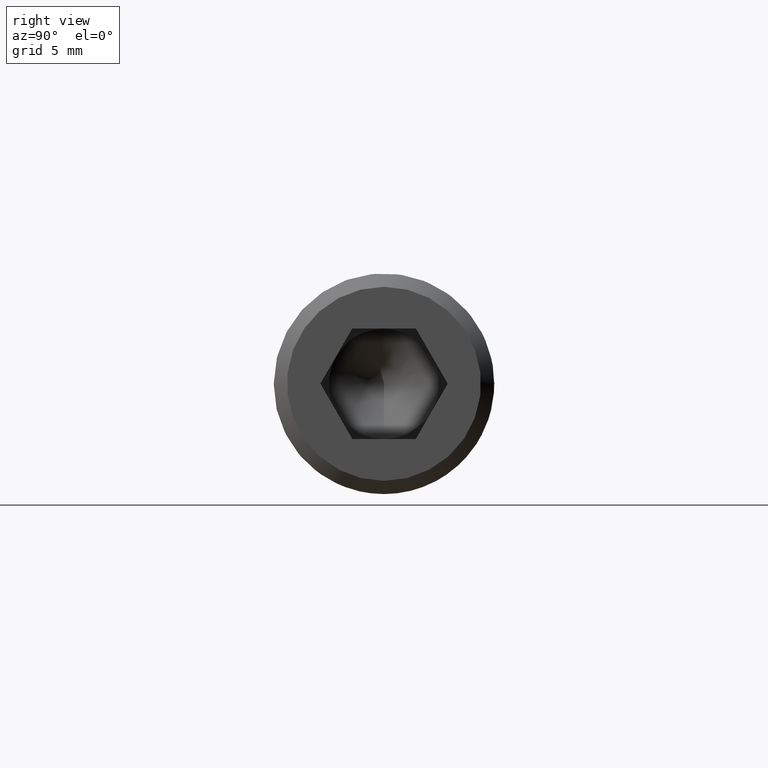
[diagram: clean part render]
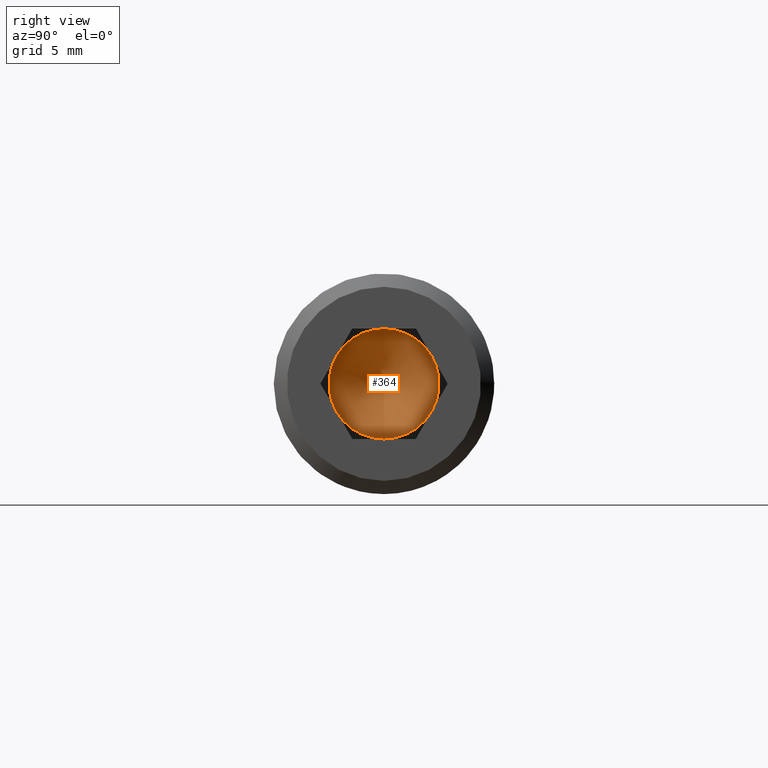
[diagram: same view with one face highlighted and labeled with its STEP entity id]
A machine part, right view. The second image highlights one B-rep face of the part: STEP entity #364.
In plain terms, the highlighted conical surface has half-angle 59 deg.
Its self-contained STEP definition (entity closure, byte-faithful):
#364 = ADVANCED_FACE ( 'NONE', ( #8355 ), #16411, .F. ) ;
#563 = EDGE_CURVE ( 'NONE', #2513, #7392, #16839, .T. ) ;
#1183 = DIRECTION ( 'NONE',  ( 0.0000000000000000000, 0.0000000000000000000, -1.000000000000000000 ) ) ;
#1186 = CIRCLE ( 'NONE', #4621, 2.500000000000002200 ) ;
#1951 = CARTESIAN_POINT ( 'NONE',  ( 24.00000000000000000, 0.0000000000000000000, 2.500000000000004400 ) ) ;
#2078 = DIRECTION ( 'NONE',  ( 0.0000000000000000000, 0.0000000000000000000, -1.000000000000000000 ) ) ;
#2513 = VERTEX_POINT ( 'NONE', #14290 ) ;
#2641 = AXIS2_PLACEMENT_3D ( 'NONE', #3935, #12199, #8104 ) ;
#2725 = AXIS2_PLACEMENT_3D ( 'NONE', #16428, #14980, #12299 ) ;
#2796 = VERTEX_POINT ( 'NONE', #14088 ) ;
#2859 = DIRECTION ( 'NONE',  ( 0.0000000000000000000, 0.0000000000000000000, -1.000000000000000000 ) ) ;
#2982 = EDGE_CURVE ( 'NONE', #7392, #11617, #15599, .T. ) ;
#3885 = EDGE_CURVE ( 'NONE', #11617, #13040, #6847, .T. ) ;
#3935 = CARTESIAN_POINT ( 'NONE',  ( 24.00000000000000000, 0.0000000000000000000, 1.438164128724989300E-015 ) ) ;
#4621 = AXIS2_PLACEMENT_3D ( 'NONE', #13664, #8089, #1183 ) ;
#4719 = EDGE_CURVE ( 'NONE', #2796, #4876, #1186, .T. ) ;
#4876 = VERTEX_POINT ( 'NONE', #1951 ) ;
#5022 = CARTESIAN_POINT ( 'NONE',  ( 24.00000000000000000, 0.0000000000000000000, 2.204364238465234600E-015 ) ) ;
#5650 = CARTESIAN_POINT ( 'NONE',  ( 24.00000000000000000, -2.165063509461101700, -1.250000000000000700 ) ) ;
#6647 = AXIS2_PLACEMENT_3D ( 'NONE', #16523, #6784, #11220 ) ;
#6784 = DIRECTION ( 'NONE',  ( 1.000000000000000000, 0.0000000000000000000, 0.0000000000000000000 ) ) ;
#6847 = CIRCLE ( 'NONE', #7182, 2.500000000000002200 ) ;
#7182 = AXIS2_PLACEMENT_3D ( 'NONE', #11061, #8372, #2859 ) ;
#7392 = VERTEX_POINT ( 'NONE', #5650 ) ;
#8089 = DIRECTION ( 'NONE',  ( 1.000000000000000000, 0.0000000000000000000, 0.0000000000000000000 ) ) ;
#8104 = DIRECTION ( 'NONE',  ( 0.0000000000000000000, 0.0000000000000000000, -1.000000000000000000 ) ) ;
#8355 = FACE_OUTER_BOUND ( 'NONE', #9565, .T. ) ;
#8372 = DIRECTION ( 'NONE',  ( 1.000000000000000000, -0.0000000000000000000, -1.841517888950051000E-016 ) ) ;
#9197 = CIRCLE ( 'NONE', #2725, 2.500000000000002200 ) ;
#9492 = ORIENTED_EDGE ( 'NONE', *, *, #4719, .T. ) ;
#9565 = EDGE_LOOP ( 'NONE', ( #13220, #14139, #9492, #10911, #17832, #16064 ) ) ;
#10911 = ORIENTED_EDGE ( 'NONE', *, *, #17647, .T. ) ;
#11061 = CARTESIAN_POINT ( 'NONE',  ( 24.00000000000000000, 0.0000000000000000000, 2.204364238465234600E-015 ) ) ;
#11220 = DIRECTION ( 'NONE',  ( 0.0000000000000000000, 0.0000000000000000000, -1.000000000000000000 ) ) ;
#11617 = VERTEX_POINT ( 'NONE', #12788 ) ;
#11692 = CARTESIAN_POINT ( 'NONE',  ( 24.00000000000000000, 0.0000000000000000000, 1.438164128724989300E-015 ) ) ;
#12199 = DIRECTION ( 'NONE',  ( 1.000000000000000000, 0.0000000000000000000, 0.0000000000000000000 ) ) ;
#12299 = DIRECTION ( 'NONE',  ( 0.0000000000000000000, 0.0000000000000000000, -1.000000000000000000 ) ) ;
#12446 = CARTESIAN_POINT ( 'NONE',  ( 24.00000000000000000, 2.165063509461098600, -1.249999999999998700 ) ) ;
#12637 = DIRECTION ( 'NONE',  ( 1.000000000000000000, -0.0000000000000000000, -1.841517888950051000E-016 ) ) ;
#12788 = CARTESIAN_POINT ( 'NONE',  ( 24.00000000000000000, -3.755786496842895100E-016, -2.500000000000000000 ) ) ;
#13040 = VERTEX_POINT ( 'NONE', #12446 ) ;
#13220 = ORIENTED_EDGE ( 'NONE', *, *, #3885, .T. ) ;
#13664 = CARTESIAN_POINT ( 'NONE',  ( 24.00000000000000000, 0.0000000000000000000, 1.438164128724989300E-015 ) ) ;
#13826 = CIRCLE ( 'NONE', #6647, 2.500000000000002200 ) ;
#14088 = CARTESIAN_POINT ( 'NONE',  ( 24.00000000000000000, 2.165063509461099000, 1.250000000000002400 ) ) ;
#14139 = ORIENTED_EDGE ( 'NONE', *, *, #16956, .T. ) ;
#14290 = CARTESIAN_POINT ( 'NONE',  ( 24.00000000000000000, -2.165063509461098600, 1.250000000000003300 ) ) ;
#14536 = AXIS2_PLACEMENT_3D ( 'NONE', #5022, #12637, #14818 ) ;
#14818 = DIRECTION ( 'NONE',  ( 0.0000000000000000000, 0.0000000000000000000, -1.000000000000000000 ) ) ;
#14980 = DIRECTION ( 'NONE',  ( 1.000000000000000000, 0.0000000000000000000, 0.0000000000000000000 ) ) ;
#15599 = CIRCLE ( 'NONE', #17454, 2.500000000000002200 ) ;
#15929 = DIRECTION ( 'NONE',  ( 1.000000000000000000, 0.0000000000000000000, 0.0000000000000000000 ) ) ;
#16064 = ORIENTED_EDGE ( 'NONE', *, *, #2982, .T. ) ;
#16411 = CONICAL_SURFACE ( 'NONE', #14536, 2.500000000000002200, 1.029744258676650100 ) ;
#16428 = CARTESIAN_POINT ( 'NONE',  ( 24.00000000000000000, 0.0000000000000000000, 1.438164128724989300E-015 ) ) ;
#16523 = CARTESIAN_POINT ( 'NONE',  ( 24.00000000000000000, 0.0000000000000000000, 1.438164128724989300E-015 ) ) ;
#16839 = CIRCLE ( 'NONE', #2641, 2.500000000000002200 ) ;
#16956 = EDGE_CURVE ( 'NONE', #13040, #2796, #13826, .T. ) ;
#17454 = AXIS2_PLACEMENT_3D ( 'NONE', #11692, #15929, #2078 ) ;
#17647 = EDGE_CURVE ( 'NONE', #4876, #2513, #9197, .T. ) ;
#17832 = ORIENTED_EDGE ( 'NONE', *, *, #563, .T. ) ;